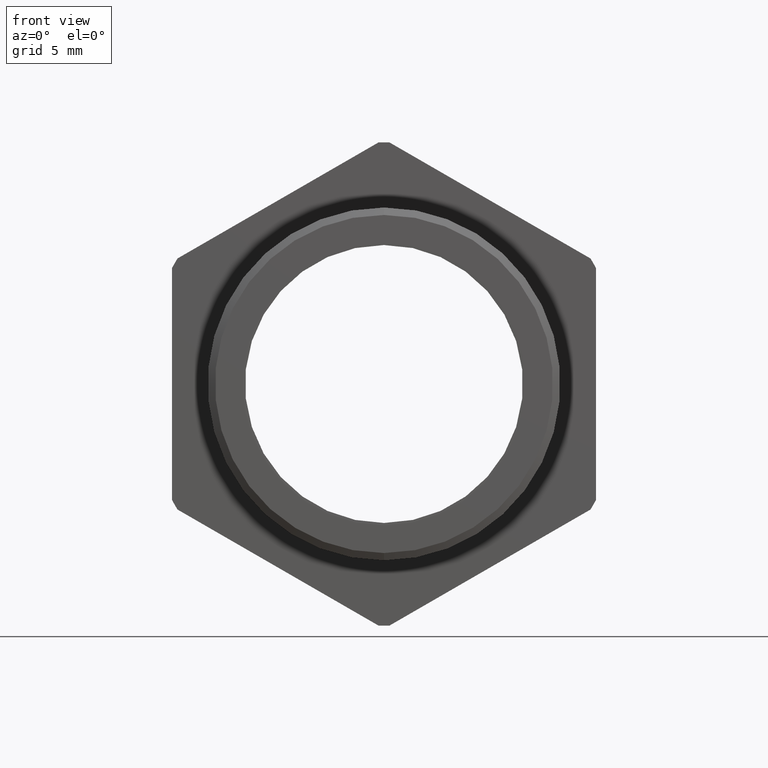
[diagram: clean part render]
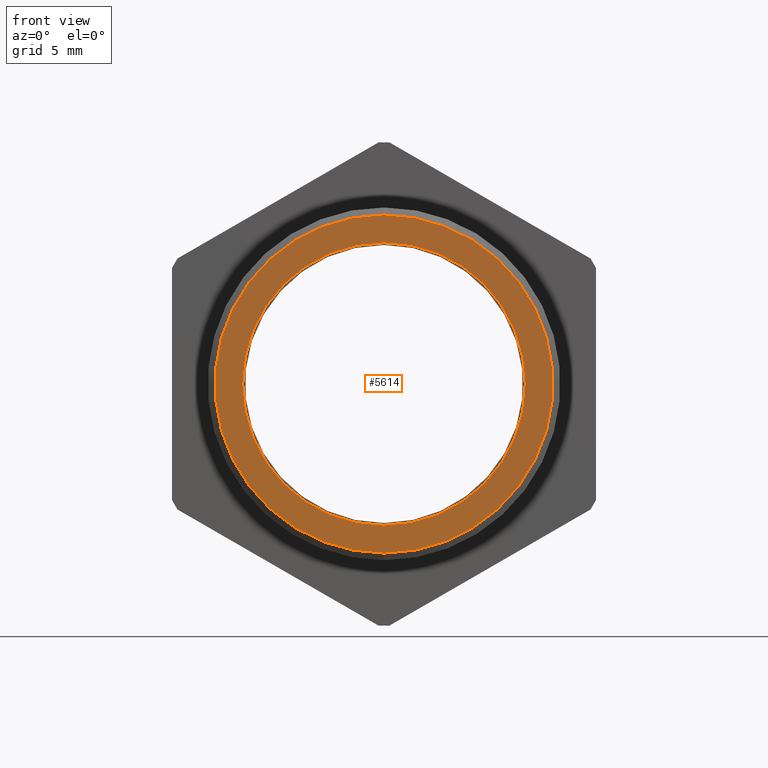
[diagram: same view with one face highlighted and labeled with its STEP entity id]
A machine part, front view. The second image highlights one B-rep face of the part: STEP entity #5614.
In plain terms, the highlighted planar face has unit normal (0, -1, -0).
Its self-contained STEP definition (entity closure, byte-faithful):
#689 = DIRECTION ( 'NONE',  ( 0.0000000000000000000, 0.0000000000000000000, -1.000000000000000000 ) ) ;
#690 = DIRECTION ( 'NONE',  ( 0.0000000000000000000, 1.000000000000000000, 0.0000000000000000000 ) ) ;
#691 = CARTESIAN_POINT ( 'NONE',  ( 0.0000000000000000000, -0.2424451094170520200, 0.0000000000000000000 ) ) ;
#692 = AXIS2_PLACEMENT_3D ( 'NONE', #691, #690, #689 ) ;
#693 = CIRCLE ( 'NONE', #692, 0.3150000000000000600 ) ;
#698 = CARTESIAN_POINT ( 'NONE',  ( 0.0000000000000000000, -0.2424451094170520200, 0.3150000000000000600 ) ) ;
#1236 = DIRECTION ( 'NONE',  ( 0.0000000000000000000, 0.0000000000000000000, -1.000000000000000000 ) ) ;
#1237 = DIRECTION ( 'NONE',  ( 0.0000000000000000000, -1.000000000000000000, -0.0000000000000000000 ) ) ;
#1239 = AXIS2_PLACEMENT_3D ( 'NONE', #1241, #1237, #1236 ) ;
#1241 = CARTESIAN_POINT ( 'NONE',  ( 0.2589880461203001900, -0.2424451094170520200, 0.0000000000000000000 ) ) ;
#1242 = PLANE ( 'NONE',  #1239 ) ;
#1244 = FACE_OUTER_BOUND ( 'NONE', #5636, .T. ) ;
#1245 = FACE_BOUND ( 'NONE', #5608, .T. ) ;
#1276 = DIRECTION ( 'NONE',  ( 0.0000000000000000000, 0.0000000000000000000, -1.000000000000000000 ) ) ;
#1277 = DIRECTION ( 'NONE',  ( 0.0000000000000000000, 1.000000000000000000, 0.0000000000000000000 ) ) ;
#1278 = CARTESIAN_POINT ( 'NONE',  ( 0.0000000000000000000, -0.2424451094170520200, 0.0000000000000000000 ) ) ;
#1279 = AXIS2_PLACEMENT_3D ( 'NONE', #1278, #1277, #1276 ) ;
#1280 = CIRCLE ( 'NONE', #1279, 0.3150000000000000600 ) ;
#1281 = DIRECTION ( 'NONE',  ( 0.0000000000000000000, 0.0000000000000000000, -1.000000000000000000 ) ) ;
#1282 = DIRECTION ( 'NONE',  ( -0.0000000000000000000, -1.000000000000000000, -0.0000000000000000000 ) ) ;
#1283 = CARTESIAN_POINT ( 'NONE',  ( 0.0000000000000000000, -0.2424451094170520200, 0.0000000000000000000 ) ) ;
#1284 = AXIS2_PLACEMENT_3D ( 'NONE', #1283, #1282, #1281 ) ;
#1285 = CIRCLE ( 'NONE', #1284, 0.2634220778713249300 ) ;
#2195 = CARTESIAN_POINT ( 'NONE',  ( 3.857637417314163300E-017, -0.2424451094170520200, -0.3150000000000000600 ) ) ;
#4413 = DIRECTION ( 'NONE',  ( 0.0000000000000000000, 0.0000000000000000000, -1.000000000000000000 ) ) ;
#4414 = DIRECTION ( 'NONE',  ( -0.0000000000000000000, -1.000000000000000000, -0.0000000000000000000 ) ) ;
#4415 = CARTESIAN_POINT ( 'NONE',  ( 0.0000000000000000000, -0.2424451094170520200, 0.0000000000000000000 ) ) ;
#4416 = AXIS2_PLACEMENT_3D ( 'NONE', #4415, #4414, #4413 ) ;
#4417 = CIRCLE ( 'NONE', #4416, 0.2634220778713249300 ) ;
#4990 = VERTEX_POINT ( 'NONE', #8209 ) ;
#5019 = VERTEX_POINT ( 'NONE', #8272 ) ;
#5318 = VERTEX_POINT ( 'NONE', #698 ) ;
#5326 = EDGE_CURVE ( 'NONE', #6087, #5318, #693, .T. ) ;
#5608 = EDGE_LOOP ( 'NONE', ( #5612, #5609 ) ) ;
#5609 = ORIENTED_EDGE ( 'NONE', *, *, #5637, .F. ) ;
#5612 = ORIENTED_EDGE ( 'NONE', *, *, #9109, .F. ) ;
#5614 = ADVANCED_FACE ( 'NONE', ( #1245, #1244 ), #1242, .T. ) ;
#5632 = ORIENTED_EDGE ( 'NONE', *, *, #5326, .F. ) ;
#5636 = EDGE_LOOP ( 'NONE', ( #5640, #5632 ) ) ;
#5637 = EDGE_CURVE ( 'NONE', #5019, #4990, #1285, .T. ) ;
#5639 = EDGE_CURVE ( 'NONE', #5318, #6087, #1280, .T. ) ;
#5640 = ORIENTED_EDGE ( 'NONE', *, *, #5639, .F. ) ;
#6087 = VERTEX_POINT ( 'NONE', #2195 ) ;
#8209 = CARTESIAN_POINT ( 'NONE',  ( 0.0000000000000000000, -0.2424451094170520200, 0.2634220778713249300 ) ) ;
#8272 = CARTESIAN_POINT ( 'NONE',  ( 3.265736501453484600E-017, -0.2424451094170520200, -0.2634220778713249300 ) ) ;
#9109 = EDGE_CURVE ( 'NONE', #4990, #5019, #4417, .T. ) ;